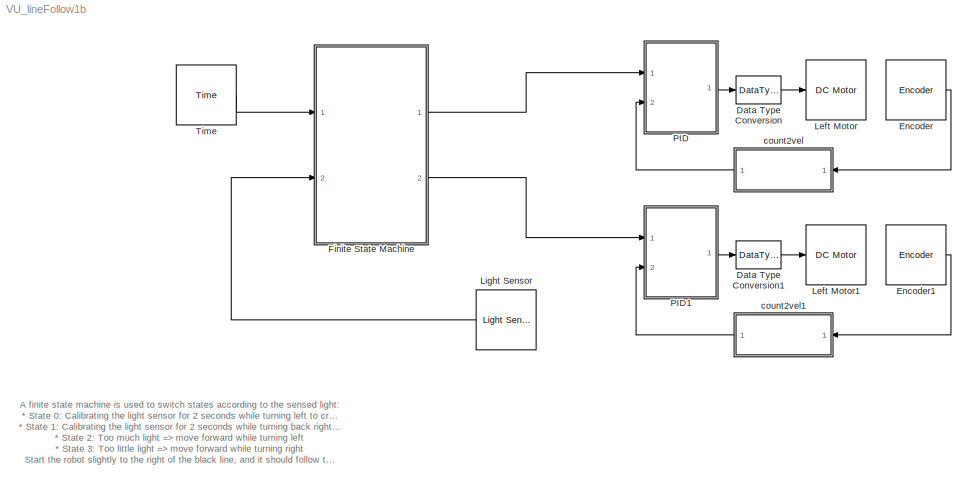
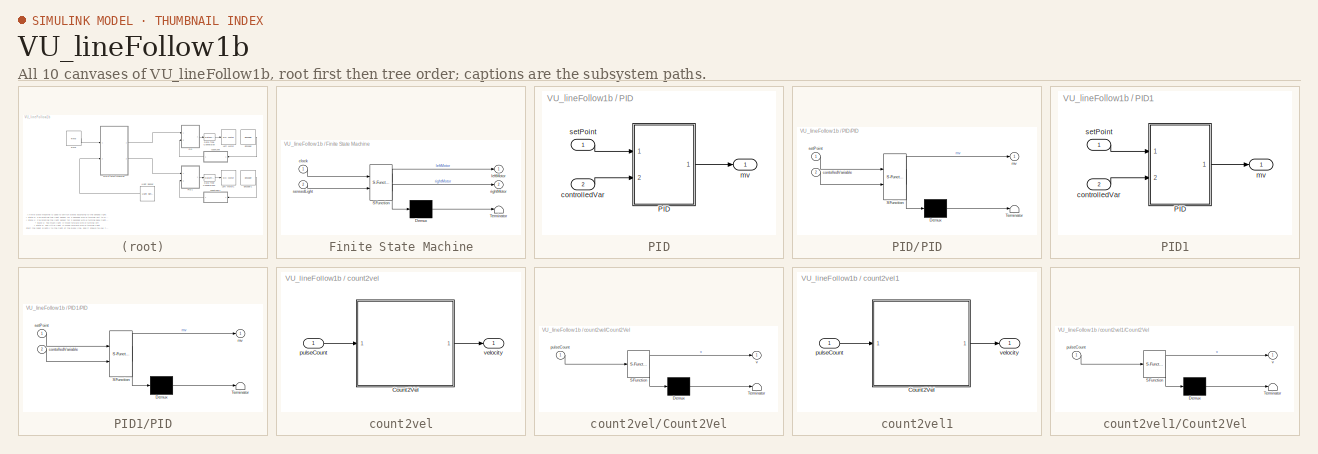
[diagram: thumbnail index - all 10 canvases of the model, root first then tree order]
MODEL VU_lineFollow1b
KIND model
BLOCK [DataTypeConversion] Data Type Conversion
  OutDataType = sfix(16)
  OutDataTypeMode = int8
  OutDataTypeStr = int8
  OutScaling = 2^0
  RndMeth = Floor
  SID = 43
BLOCK [DataTypeConversion] Data Type Conversion1
  OutDataType = sfix(16)
  OutDataTypeMode = int8
  OutDataTypeStr = int8
  OutScaling = 2^0
  RndMeth = Floor
  SID = 48
BLOCK [Reference] Encoder  REF=lego_nxt_lib/Encoder  (lib defined in mdl_3d9a4c0387f8)
  Ports = [0, 1]
  SID = 37
  SourceBlock = lego_nxt_lib/Encoder
  SourceType = Encoder
  port = Port C
  st = 0.05
BLOCK [Reference] Encoder1  REF=lego_nxt_lib/Encoder  (lib defined in mdl_3d9a4c0387f8)
  Ports = [0, 1]
  SID = 49
  SourceBlock = lego_nxt_lib/Encoder
  SourceType = Encoder
  port = Port B
  st = 0.05
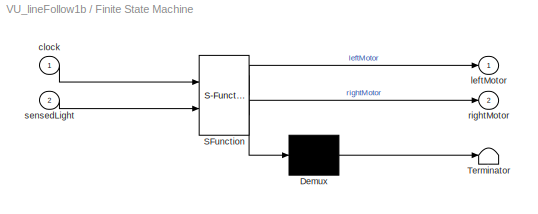
BLOCK [SubSystem] Finite State Machine
  FunctionWithSeparateData = off
  MaskDescription = Embedded MATLAB block
  MaskDisplay = disp('fsm');
  MaskHideContents = off
  MaskIconFrame = on
  MaskIconOpaque = off
  MaskIconRotate = none
  MaskIconUnits = autoscale
  MaskPortRotate = default
  MaskSelfModifiable = on
  MaskType = Stateflow
  MinAlgLoopOccurrences = off
  Opaque = off
  PermitHierarchicalResolution = ExplicitOnly
  Ports = [2, 2]
  PropExecContextOutsideSubsystem = off
  RTWSystemCode = Auto
  RequestExecContextInheritance = off
  SID = 35
  TreatAsAtomicUnit = on
BLOCK [Demux] Finite State Machine/ Demux 
  Outputs = 1
  Ports = [1, 1]
  SID = 15
BLOCK [S-Function] Finite State Machine/ SFunction 
  EnableBusSupport = on
  FunctionName = sf_sfun
  PortCounts = [2 3]
  Ports = [2, 3]
  SID = 14
  Tag = Stateflow S-Function VU_lineFollow1b 2
BLOCK [Terminator] Finite State Machine/ Terminator 
  SID = 17
BLOCK [Inport] Finite State Machine/clock
  IconDisplay = Port number
  SID = 18
BLOCK [Outport] Finite State Machine/leftMotor
  IconDisplay = Port number
  OutDataType = sfix(16)
  OutScaling = 2^0
  SID = 5
BLOCK [Outport] Finite State Machine/rightMotor
  IconDisplay = Port number
  Port = 2
  SID = 19
BLOCK [Inport] Finite State Machine/sensedLight
  IconDisplay = Port number
  OutDataType = sfix(16)
  OutScaling = 2^0
  Port = 2
  SID = 1
BLOCK [Reference] Left Motor  REF=lego_nxt_lib/DC Motor  (lib defined in mdl_3d9a4c0387f8)
  Ports = [1]
  SID = 25
  SourceBlock = lego_nxt_lib/DC Motor
  SourceType = Servo Motor (Simple)
  brake = Coast
  port = Port C
BLOCK [Reference] Left Motor1  REF=lego_nxt_lib/DC Motor  (lib defined in mdl_3d9a4c0387f8)
  Ports = [1]
  SID = 50
  SourceBlock = lego_nxt_lib/DC Motor
  SourceType = Servo Motor (Simple)
  brake = Coast
  port = Port B
BLOCK [Reference] Light Sensor  REF=lego_nxt_lib/Light Sensor  (lib defined in mdl_3d9a4c0387f8)
  Ports = [0, 1]
  SID = 26
  SourceBlock = lego_nxt_lib/Light Sensor
  SourceType = Light Sensor
  port = Port 3
  st = 0.05
BLOCK [SubSystem] PID
  FunctionWithSeparateData = off
  MaskCallbackString = ||||
  MaskEnableString = on,on,on,on,on
  MaskHideContents = off
  MaskIconFrame = on
  MaskIconOpaque = on
  MaskIconRotate = none
  MaskIconUnits = autoscale
  MaskPortRotate = default
  MaskPromptString = Proportional gain:|Integral time:|Derivative time:|Max manipulated output Limit:|Min manipulated output Limit:
  MaskStyleString = edit,edit,edit,edit,edit
  MaskToolTipString = on,on,on,on,on
  MaskTunableValueString = on,on,on,on,on
  MaskValueString = 10|0.4|0|100|-100
  MaskVariables = Kc=@1;Ti=@2;Td=@3;mvMax=@4;mvMin=@5;
  MaskVisibilityString = on,on,on,on,on
  MinAlgLoopOccurrences = off
  Opaque = off
  Ports = [2, 1]
  PropExecContextOutsideSubsystem = off
  RTWSystemCode = Auto
  RequestExecContextInheritance = off
  SID = 38
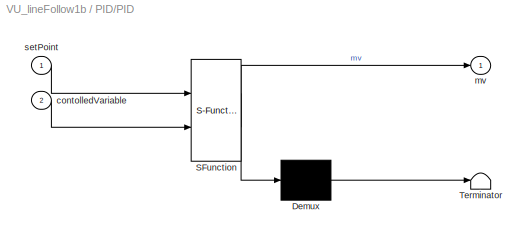
BLOCK [SubSystem] PID/PID
  FunctionWithSeparateData = off
  MaskDescription = Embedded MATLAB block
  MaskDisplay = disp('PID');
  MaskHideContents = off
  MaskIconFrame = on
  MaskIconOpaque = off
  MaskIconRotate = none
  MaskIconUnits = autoscale
  MaskPortRotate = default
  MaskSelfModifiable = on
  MaskType = Stateflow
  MinAlgLoopOccurrences = off
  Opaque = off
  PermitHierarchicalResolution = ExplicitOnly
  Ports = [2, 1]
  PropExecContextOutsideSubsystem = off
  RTWSystemCode = Auto
  RequestExecContextInheritance = off
  SID = 41
  TreatAsAtomicUnit = on
BLOCK [Demux] PID/PID/ Demux 
  Outputs = 1
  Ports = [1, 1]
  SID = 10
BLOCK [S-Function] PID/PID/ SFunction 
  EnableBusSupport = on
  FunctionName = sf_sfun
  Parameters = Kc,Td,Ti,mvMax,mvMin
  PortCounts = [2 2]
  Ports = [2, 2]
  SID = 9
  Tag = Stateflow S-Function VU_lineFollow1b 1
BLOCK [Terminator] PID/PID/ Terminator 
  SID = 12
BLOCK [Inport] PID/PID/contolledVariable
  IconDisplay = Port number
  OutDataType = sfix(16)
  OutScaling = 2^0
  Port = 2
  SID = 2
BLOCK [Outport] PID/PID/mv
  IconDisplay = Port number
  OutDataType = sfix(16)
  OutScaling = 2^0
  SID = 8
BLOCK [Inport] PID/PID/setPoint
  IconDisplay = Port number
  OutDataType = sfix(16)
  OutScaling = 2^0
  SID = 1
BLOCK [Inport] PID/controlledVar
  IconDisplay = Port number
  OutDataType = sfix(16)
  OutScaling = 2^0
  Port = 2
  SID = 40
BLOCK [Outport] PID/mv
  IconDisplay = Port number
  OutDataType = sfix(16)
  OutScaling = 2^0
  SID = 42
BLOCK [Inport] PID/setPoint
  IconDisplay = Port number
  OutDataType = sfix(16)
  OutScaling = 2^0
  SID = 39
BLOCK [SubSystem] PID1
  FunctionWithSeparateData = off
  MaskCallbackString = ||||
  MaskEnableString = on,on,on,on,on
  MaskHideContents = off
  MaskIconFrame = on
  MaskIconOpaque = on
  MaskIconRotate = none
  MaskIconUnits = autoscale
  MaskPortRotate = default
  MaskPromptString = Proportional gain:|Integral time:|Derivative time:|Max manipulated output Limit:|Min manipulated output Limit:
  MaskStyleString = edit,edit,edit,edit,edit
  MaskToolTipString = on,on,on,on,on
  MaskTunableValueString = on,on,on,on,on
  MaskValueString = 10|0.4|0|100|-100
  MaskVariables = Kc=@1;Ti=@2;Td=@3;mvMax=@4;mvMin=@5;
  MaskVisibilityString = on,on,on,on,on
  MinAlgLoopOccurrences = off
  Opaque = off
  Ports = [2, 1]
  PropExecContextOutsideSubsystem = off
  RTWSystemCode = Auto
  RequestExecContextInheritance = off
  SID = 51
BLOCK [SubSystem] PID1/PID
  FunctionWithSeparateData = off
  MaskDescription = Embedded MATLAB block
  MaskDisplay = disp('PID');
  MaskHideContents = off
  MaskIconFrame = on
  MaskIconOpaque = off
  MaskIconRotate = none
  MaskIconUnits = autoscale
  MaskPortRotate = default
  MaskSelfModifiable = on
  MaskType = Stateflow
  MinAlgLoopOccurrences = off
  Opaque = off
  PermitHierarchicalResolution = ExplicitOnly
  Ports = [2, 1]
  PropExecContextOutsideSubsystem = off
  RTWSystemCode = Auto
  RequestExecContextInheritance = off
  SID = 54
  TreatAsAtomicUnit = on
BLOCK [Demux] PID1/PID/ Demux 
  Outputs = 1
  Ports = [1, 1]
  SID = 10
BLOCK [S-Function] PID1/PID/ SFunction 
  EnableBusSupport = on
  FunctionName = sf_sfun
  Parameters = Kc,Td,Ti,mvMax,mvMin
  PortCounts = [2 2]
  Ports = [2, 2]
  SID = 9
  Tag = Stateflow S-Function VU_lineFollow1b 3
BLOCK [Terminator] PID1/PID/ Terminator 
  SID = 12
BLOCK [Inport] PID1/PID/contolledVariable
  IconDisplay = Port number
  OutDataType = sfix(16)
  OutScaling = 2^0
  Port = 2
  SID = 2
BLOCK [Outport] PID1/PID/mv
  IconDisplay = Port number
  OutDataType = sfix(16)
  OutScaling = 2^0
  SID = 8
BLOCK [Inport] PID1/PID/setPoint
  IconDisplay = Port number
  OutDataType = sfix(16)
  OutScaling = 2^0
  SID = 1
BLOCK [Inport] PID1/controlledVar
  IconDisplay = Port number
  OutDataType = sfix(16)
  OutScaling = 2^0
  Port = 2
  SID = 53
BLOCK [Outport] PID1/mv
  IconDisplay = Port number
  OutDataType = sfix(16)
  OutScaling = 2^0
  SID = 55
BLOCK [Inport] PID1/setPoint
  IconDisplay = Port number
  OutDataType = sfix(16)
  OutScaling = 2^0
  SID = 52
BLOCK [Reference] Time  REF=lego_nxt_lib/Time  (lib defined in mdl_3d9a4c0387f8)
  Ports = [0, 1]
  SID = 36
  SourceBlock = lego_nxt_lib/Time
  SourceType = System Clock
  st = 0.05
BLOCK [SubSystem] count2vel
  FunctionWithSeparateData = off
  MaskDescription = Use gainFactor to define units of the result:\nIf gainFactor=1, => units of velocity= (pulses/sample).\nThe encoders give 360 pulses / revolution of the output shaft\n\nExample:  To obtain velocity in rev/sec\nvelocity = (pulses/sample) * (samples/sec) * (rev/pulses) = rev/sec\nGiven a sample period T=0.1, and the known 360 pulses per rev...\n=> gainFactor = (1/0.1) * (1/360) = 1/36\n\nNot clear w...<+44ch>
  MaskEnableString = on
  MaskHideContents = off
  MaskIconFrame = on
  MaskIconOpaque = on
  MaskIconRotate = none
  MaskIconUnits = autoscale
  MaskPortRotate = default
  MaskPromptString = Gain Factor:
  MaskStyleString = edit
  MaskToolTipString = on
  MaskTunableValueString = on
  MaskType = count2vel
  MaskValueString = 1/0.05*1/360
  MaskVariables = gainFactor=@1;
  MaskVisibilityString = on
  MinAlgLoopOccurrences = off
  Opaque = off
  Ports = [1, 1]
  PropExecContextOutsideSubsystem = off
  RTWSystemCode = Auto
  RequestExecContextInheritance = off
  SID = 44
BLOCK [SubSystem] count2vel/Count2Vel
  FunctionWithSeparateData = off
  MaskDescription = Embedded MATLAB block
  MaskDisplay = disp('velocity');
  MaskHideContents = off
  MaskIconFrame = on
  MaskIconOpaque = off
  MaskIconRotate = none
  MaskIconUnits = autoscale
  MaskPortRotate = default
  MaskSelfModifiable = on
  MaskType = Stateflow
  MinAlgLoopOccurrences = off
  Opaque = off
  PermitHierarchicalResolution = ExplicitOnly
  Ports = [1, 1]
  PropExecContextOutsideSubsystem = off
  RTWSystemCode = Auto
  RequestExecContextInheritance = off
  SID = 46
  TreatAsAtomicUnit = on
BLOCK [Demux] count2vel/Count2Vel/ Demux 
  Outputs = 1
  Ports = [1, 1]
  SID = 7
BLOCK [S-Function] count2vel/Count2Vel/ SFunction 
  EnableBusSupport = on
  FunctionName = sf_sfun
  Parameters = gainFactor
  PortCounts = [1 2]
  Ports = [1, 2]
  SID = 6
  Tag = Stateflow S-Function VU_lineFollow1b 14
BLOCK [Terminator] count2vel/Count2Vel/ Terminator 
  SID = 9
BLOCK [Inport] count2vel/Count2Vel/pulseCount
  IconDisplay = Port number
  OutDataType = sfix(16)
  OutScaling = 2^0
  SID = 1
BLOCK [Outport] count2vel/Count2Vel/v
  IconDisplay = Port number
  OutDataType = sfix(16)
  OutScaling = 2^0
  SID = 5
BLOCK [Inport] count2vel/pulseCount
  IconDisplay = Port number
  OutDataType = sfix(16)
  OutScaling = 2^0
  SID = 45
BLOCK [Outport] count2vel/velocity
  IconDisplay = Port number
  OutDataType = sfix(16)
  OutScaling = 2^0
  SID = 47
BLOCK [SubSystem] count2vel1
  FunctionWithSeparateData = off
  MaskDescription = Use gainFactor to define units of the result:\nIf gainFactor=1, => units of velocity= (pulses/sample).\nThe encoders give 360 pulses / revolution of the output shaft\n\nExample:  To obtain velocity in rev/sec\nvelocity = (pulses/sample) * (samples/sec) * (rev/pulses) = rev/sec\nGiven a sample period T=0.1, and the known 360 pulses per rev...\n=> gainFactor = (1/0.1) * (1/360) = 1/36\n\nNot clear w...<+44ch>
  MaskEnableString = on
  MaskHideContents = off
  MaskIconFrame = on
  MaskIconOpaque = on
  MaskIconRotate = none
  MaskIconUnits = autoscale
  MaskPortRotate = default
  MaskPromptString = Gain Factor:
  MaskStyleString = edit
  MaskToolTipString = on
  MaskTunableValueString = on
  MaskType = count2vel
  MaskValueString = 1/0.05*1/360
  MaskVariables = gainFactor=@1;
  MaskVisibilityString = on
  MinAlgLoopOccurrences = off
  Opaque = off
  Ports = [1, 1]
  PropExecContextOutsideSubsystem = off
  RTWSystemCode = Auto
  RequestExecContextInheritance = off
  SID = 56
BLOCK [SubSystem] count2vel1/Count2Vel
  FunctionWithSeparateData = off
  MaskDescription = Embedded MATLAB block
  MaskDisplay = disp('velocity');
  MaskHideContents = off
  MaskIconFrame = on
  MaskIconOpaque = off
  MaskIconRotate = none
  MaskIconUnits = autoscale
  MaskPortRotate = default
  MaskSelfModifiable = on
  MaskType = Stateflow
  MinAlgLoopOccurrences = off
  Opaque = off
  PermitHierarchicalResolution = ExplicitOnly
  Ports = [1, 1]
  PropExecContextOutsideSubsystem = off
  RTWSystemCode = Auto
  RequestExecContextInheritance = off
  SID = 58
  TreatAsAtomicUnit = on
BLOCK [Demux] count2vel1/Count2Vel/ Demux 
  Outputs = 1
  Ports = [1, 1]
  SID = 7
BLOCK [S-Function] count2vel1/Count2Vel/ SFunction 
  EnableBusSupport = on
  FunctionName = sf_sfun
  Parameters = gainFactor
  PortCounts = [1 2]
  Ports = [1, 2]
  SID = 6
  Tag = Stateflow S-Function VU_lineFollow1b 4
BLOCK [Terminator] count2vel1/Count2Vel/ Terminator 
  SID = 9
BLOCK [Inport] count2vel1/Count2Vel/pulseCount
  IconDisplay = Port number
  OutDataType = sfix(16)
  OutScaling = 2^0
  SID = 1
BLOCK [Outport] count2vel1/Count2Vel/v
  IconDisplay = Port number
  OutDataType = sfix(16)
  OutScaling = 2^0
  SID = 5
BLOCK [Inport] count2vel1/pulseCount
  IconDisplay = Port number
  OutDataType = sfix(16)
  OutScaling = 2^0
  SID = 57
BLOCK [Outport] count2vel1/velocity
  IconDisplay = Port number
  OutDataType = sfix(16)
  OutScaling = 2^0
  SID = 59
ANNOTATION (root): A finite state machine is used to switch states according to the sensed light:\n* State 0: Calibrating the light sensor for 2 seconds while turning left to cross the black line\n* State 1: Calibrating the light sensor for 2 seconds while turning back right to the original position\n* State 2: Too much light => move forward while turning left\n* State 3: Too little light => move forward while turni...<+113ch>
LINE Data Type Conversion1:1 -> Left Motor1:1
LINE Data Type Conversion:1 -> Left Motor:1
LINE Encoder1:1 -> count2vel1:1
LINE Encoder:1 -> count2vel:1
LINE Finite State Machine/ Demux :1 -> Finite State Machine/ Terminator :1
LINE Finite State Machine/ SFunction :1 -> Finite State Machine/ Demux :1
LINE Finite State Machine/ SFunction :2 -> Finite State Machine/leftMotor:1
LINE Finite State Machine/ SFunction :3 -> Finite State Machine/rightMotor:1
LINE Finite State Machine/clock:1 -> Finite State Machine/ SFunction :1
LINE Finite State Machine/sensedLight:1 -> Finite State Machine/ SFunction :2
LINE Finite State Machine:1 -> PID:1
LINE Finite State Machine:2 -> PID1:1
LINE Light Sensor:1 -> Finite State Machine:2
LINE PID/PID/ Demux :1 -> PID/PID/ Terminator :1
LINE PID/PID/ SFunction :1 -> PID/PID/ Demux :1
LINE PID/PID/ SFunction :2 -> PID/PID/mv:1
LINE PID/PID/contolledVariable:1 -> PID/PID/ SFunction :2
LINE PID/PID/setPoint:1 -> PID/PID/ SFunction :1
LINE PID/PID:1 -> PID/mv:1
LINE PID/controlledVar:1 -> PID/PID:2
LINE PID/setPoint:1 -> PID/PID:1
LINE PID1/PID/ Demux :1 -> PID1/PID/ Terminator :1
LINE PID1/PID/ SFunction :1 -> PID1/PID/ Demux :1
LINE PID1/PID/ SFunction :2 -> PID1/PID/mv:1
LINE PID1/PID/contolledVariable:1 -> PID1/PID/ SFunction :2
LINE PID1/PID/setPoint:1 -> PID1/PID/ SFunction :1
LINE PID1/PID:1 -> PID1/mv:1
LINE PID1/controlledVar:1 -> PID1/PID:2
LINE PID1/setPoint:1 -> PID1/PID:1
LINE PID1:1 -> Data Type Conversion1:1
LINE PID:1 -> Data Type Conversion:1
LINE Time:1 -> Finite State Machine:1
LINE count2vel/Count2Vel/ Demux :1 -> count2vel/Count2Vel/ Terminator :1
LINE count2vel/Count2Vel/ SFunction :1 -> count2vel/Count2Vel/ Demux :1
LINE count2vel/Count2Vel/ SFunction :2 -> count2vel/Count2Vel/v:1
LINE count2vel/Count2Vel/pulseCount:1 -> count2vel/Count2Vel/ SFunction :1
LINE count2vel/Count2Vel:1 -> count2vel/velocity:1
LINE count2vel/pulseCount:1 -> count2vel/Count2Vel:1
LINE count2vel1/Count2Vel/ Demux :1 -> count2vel1/Count2Vel/ Terminator :1
LINE count2vel1/Count2Vel/ SFunction :1 -> count2vel1/Count2Vel/ Demux :1
LINE count2vel1/Count2Vel/ SFunction :2 -> count2vel1/Count2Vel/v:1
LINE count2vel1/Count2Vel/pulseCount:1 -> count2vel1/Count2Vel/ SFunction :1
LINE count2vel1/Count2Vel:1 -> count2vel1/velocity:1
LINE count2vel1/pulseCount:1 -> count2vel1/Count2Vel:1
LINE count2vel1:1 -> PID1:2
LINE count2vel:1 -> PID:2
CHART PID/PID states=1 transitions=1
  STATE_LABEL 'eML_blk_kernel()'
CHART Finite State Machine states=1 transitions=1
  STATE_LABEL 'eML_blk_kernel()'
CHART PID1/PID states=1 transitions=1
  STATE_LABEL 'eML_blk_kernel()'
CHART count2vel1/Count2Vel states=1 transitions=1
  STATE_LABEL 'eML_blk_kernel()'
CHART count2vel/Count2Vel states=1 transitions=1
  STATE_LABEL 'eML_blk_kernel()'
